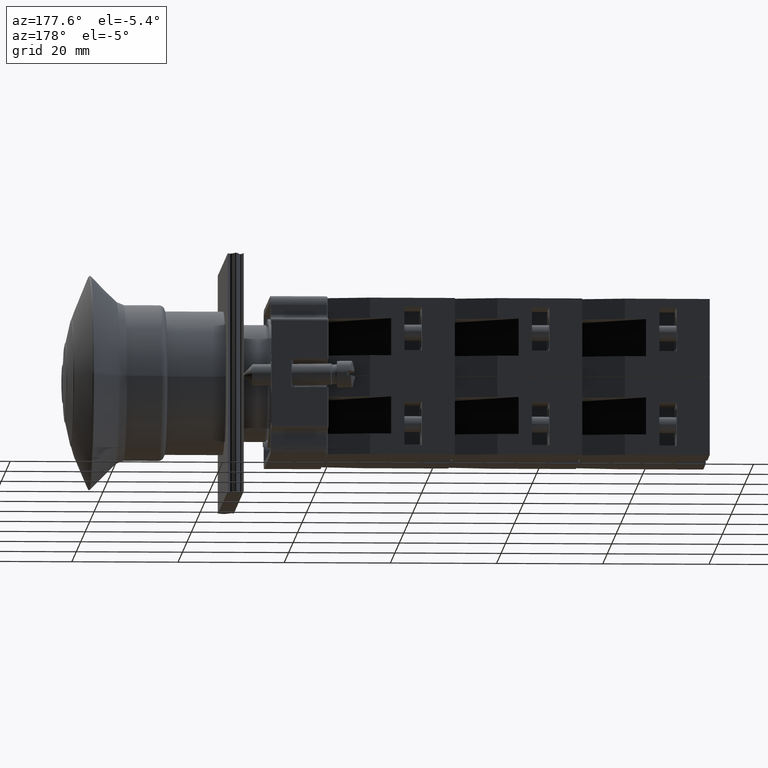
[diagram: clean part render]
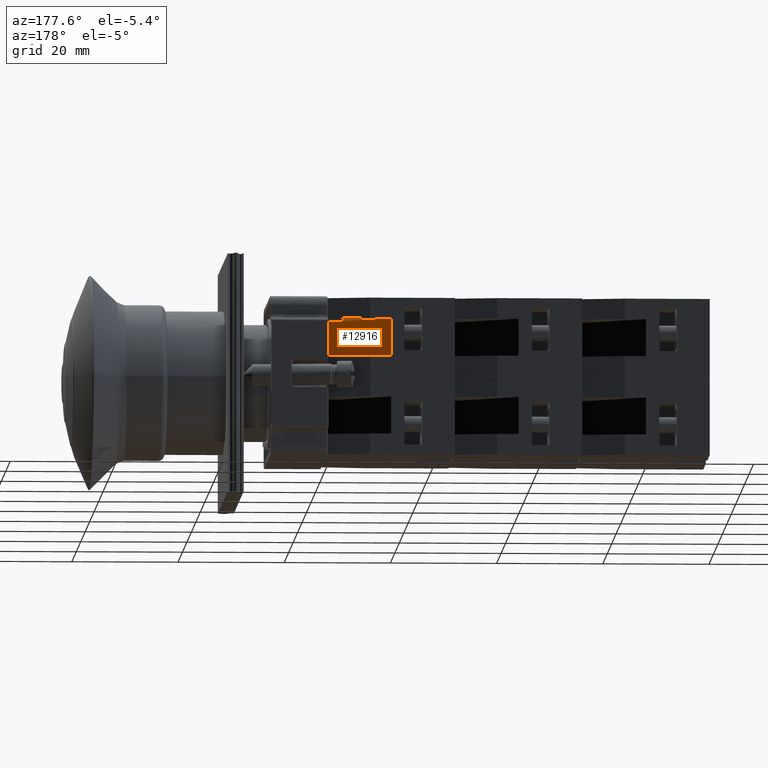
[diagram: same view with one face highlighted and labeled with its STEP entity id]
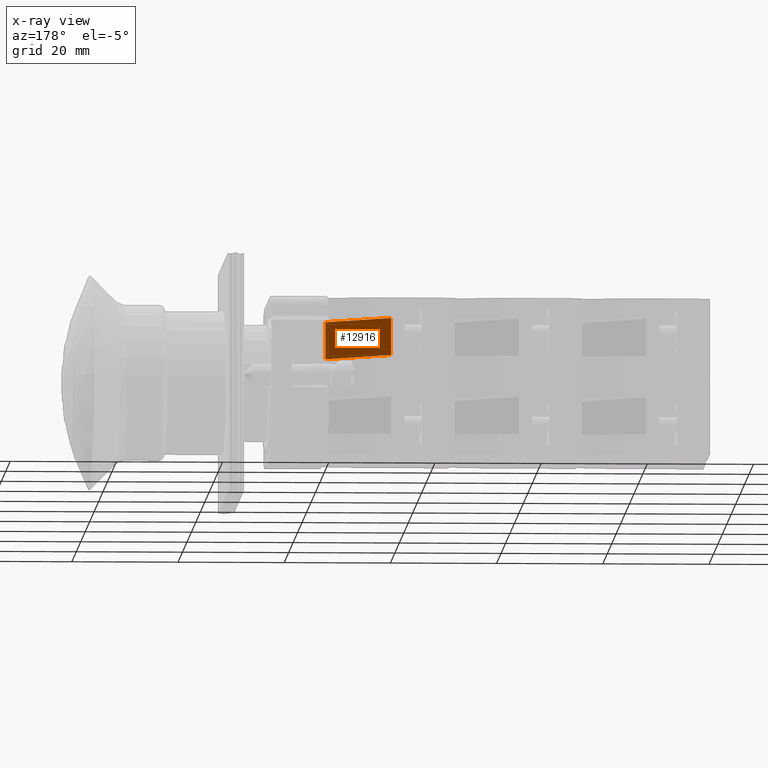
[diagram: x-ray of the same camera — body ghosted, the highlighted face saturated]
A machine part, auxiliary view. The second image highlights one B-rep face of the part: STEP entity #12916.
The next image is the same camera in x-ray: the body ghosted, the highlighted face saturated — about 0% of this face is hidden behind the body in this view.
In plain terms, the highlighted planar face has unit normal (-0.6, -0.8, -0).
Its self-contained STEP definition (entity closure, byte-faithful):
#12861=CARTESIAN_POINT('',(-24.936741828918464,-0.202926676720378,10.850000000000000));
#12862=VERTEX_POINT('',#12861);
#12869=CARTESIAN_POINT('',(-15.936741828918466,11.797073323279626,10.850000000000000));
#12870=VERTEX_POINT('',#12869);
#12871=CARTESIAN_POINT('',(-24.936741828918464,-0.202926676720378,10.850000000000000));
#12872=DIRECTION('',(0.600000000000000,0.800000000000000,0.0));
#12873=VECTOR('',#12872,15.000000000000002);
#12874=LINE('',#12871,#12873);
#12875=EDGE_CURVE('',#12862,#12870,#12874,.T.);
#12886=CARTESIAN_POINT('',(-15.936741828918466,11.797073323279626,7.350000000000000));
#12887=DIRECTION('',(-0.800000000000000,0.600000000000000,0.0));
#12888=DIRECTION('',(0.0,0.0,1.0));
#12889=AXIS2_PLACEMENT_3D('',#12886,#12887,#12888);
#12890=PLANE('',#12889);
#12891=CARTESIAN_POINT('',(-15.936741828918466,11.797073323279626,3.850000000000001));
#12892=VERTEX_POINT('',#12891);
#12893=CARTESIAN_POINT('',(-24.936741828918464,-0.202926676720378,3.850000000000001));
#12894=VERTEX_POINT('',#12893);
#12895=CARTESIAN_POINT('',(-15.936741828918466,11.797073323279626,3.850000000000001));
#12896=DIRECTION('',(-0.600000000000000,-0.800000000000000,0.0));
#12897=VECTOR('',#12896,15.000000000000002);
#12898=LINE('',#12895,#12897);
#12899=EDGE_CURVE('',#12892,#12894,#12898,.T.);
#12900=ORIENTED_EDGE('',*,*,#12899,.F.);
#12901=CARTESIAN_POINT('',(-15.936741828918466,11.797073323279626,10.850000000000000));
#12902=DIRECTION('',(0.0,0.0,-1.0));
#12903=VECTOR('',#12902,6.999999999999999);
#12904=LINE('',#12901,#12903);
#12905=EDGE_CURVE('',#12870,#12892,#12904,.T.);
#12906=ORIENTED_EDGE('',*,*,#12905,.F.);
#12907=ORIENTED_EDGE('',*,*,#12875,.F.);
#12908=CARTESIAN_POINT('',(-24.936741828918464,-0.202926676720378,3.850000000000001));
#12909=DIRECTION('',(0.0,0.0,1.0));
#12910=VECTOR('',#12909,6.999999999999999);
#12911=LINE('',#12908,#12910);
#12912=EDGE_CURVE('',#12894,#12862,#12911,.T.);
#12913=ORIENTED_EDGE('',*,*,#12912,.F.);
#12914=EDGE_LOOP('',(#12900,#12906,#12907,#12913));
#12915=FACE_OUTER_BOUND('',#12914,.T.);
#12916=ADVANCED_FACE('',(#12915),#12890,.F.);